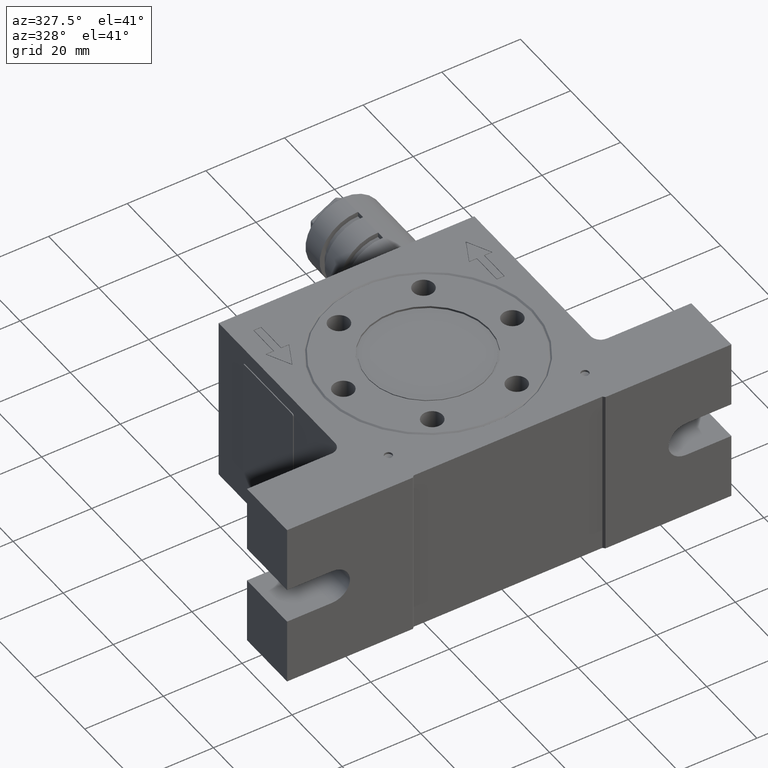
[diagram: clean part render]
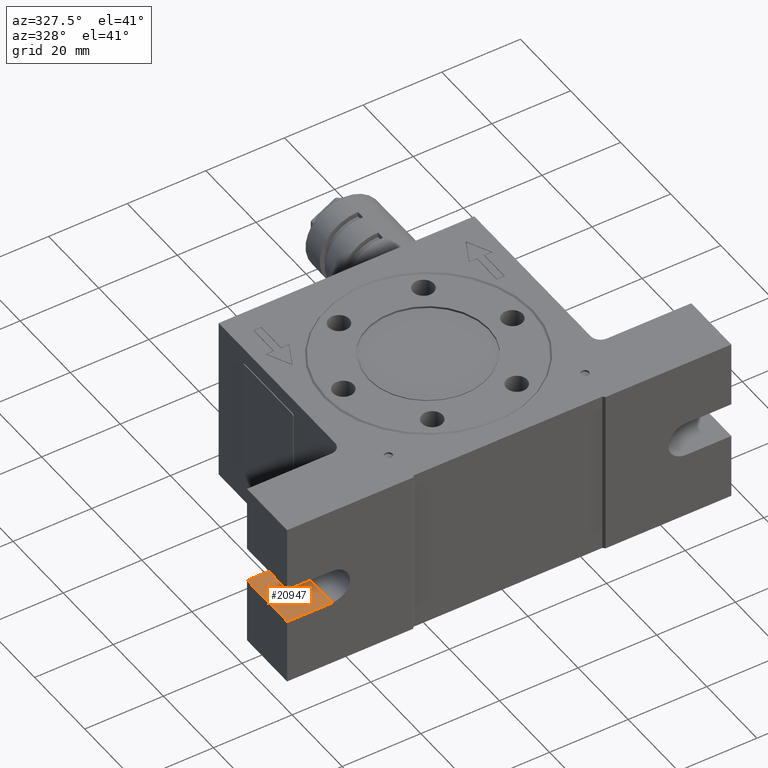
[diagram: same view with one face highlighted and labeled with its STEP entity id]
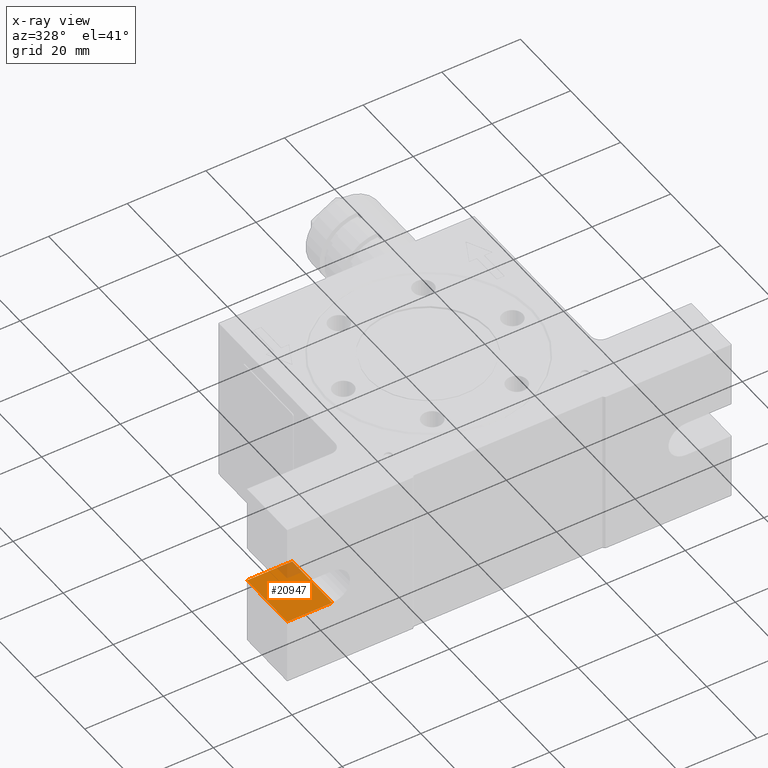
[diagram: x-ray of the same camera — body ghosted, the highlighted face saturated]
A machine part, auxiliary view. The second image highlights one B-rep face of the part: STEP entity #20947.
The next image is the same camera in x-ray: the body ghosted, the highlighted face saturated — about 9% of this face is hidden behind the body in this view.
In plain terms, the highlighted planar face has unit normal (-0, 0, -1).
Its self-contained STEP definition (entity closure, byte-faithful):
#465 = VECTOR ( 'NONE', #15392, 1000.000000000000000 ) ;
#981 = CARTESIAN_POINT ( 'NONE',  ( -45.00000000000000000, -16.50000000000000000, -4.500000000000000000 ) ) ;
#2049 = VERTEX_POINT ( 'NONE', #7178 ) ;
#2142 = LINE ( 'NONE', #18269, #14309 ) ;
#2880 = ORIENTED_EDGE ( 'NONE', *, *, #18148, .F. ) ;
#4796 = CARTESIAN_POINT ( 'NONE',  ( -45.00000000000000000, -32.50000000000000000, -4.500000000000000000 ) ) ;
#5578 = LINE ( 'NONE', #7452, #10248 ) ;
#5628 = VECTOR ( 'NONE', #14876, 1000.000000000000000 ) ;
#6692 = VERTEX_POINT ( 'NONE', #981 ) ;
#7076 = ORIENTED_EDGE ( 'NONE', *, *, #14333, .F. ) ;
#7178 = CARTESIAN_POINT ( 'NONE',  ( -56.50000000000000000, -16.50000000000000000, -4.500000000000000000 ) ) ;
#7341 = VERTEX_POINT ( 'NONE', #21377 ) ;
#7452 = CARTESIAN_POINT ( 'NONE',  ( -56.50000000000000000, -16.50000000000000000, -4.500000000000000000 ) ) ;
#7751 = EDGE_LOOP ( 'NONE', ( #9582, #2880, #7076, #13214 ) ) ;
#8139 = EDGE_CURVE ( 'NONE', #6692, #2049, #5578, .T. ) ;
#8458 = CARTESIAN_POINT ( 'NONE',  ( -45.00000000000000000, -32.50000000000000000, -4.500000000000000000 ) ) ;
#9582 = ORIENTED_EDGE ( 'NONE', *, *, #8139, .T. ) ;
#10248 = VECTOR ( 'NONE', #16155, 1000.000000000000000 ) ;
#10526 = CARTESIAN_POINT ( 'NONE',  ( -56.50000000000000000, -32.50000000000000000, -4.500000000000000000 ) ) ;
#10663 = FACE_OUTER_BOUND ( 'NONE', #7751, .T. ) ;
#11070 = LINE ( 'NONE', #10526, #465 ) ;
#11601 = CARTESIAN_POINT ( 'NONE',  ( -56.50000000000000000, -32.50000000000000000, -4.500000000000000000 ) ) ;
#13214 = ORIENTED_EDGE ( 'NONE', *, *, #14097, .T. ) ;
#14097 = EDGE_CURVE ( 'NONE', #16405, #6692, #17028, .T. ) ;
#14309 = VECTOR ( 'NONE', #14789, 1000.000000000000000 ) ;
#14333 = EDGE_CURVE ( 'NONE', #16405, #7341, #11070, .T. ) ;
#14787 = PLANE ( 'NONE',  #18323 ) ;
#14789 = DIRECTION ( 'NONE',  ( 0.0000000000000000000, 1.000000000000000000, 0.0000000000000000000 ) ) ;
#14876 = DIRECTION ( 'NONE',  ( 0.0000000000000000000, 1.000000000000000000, 0.0000000000000000000 ) ) ;
#15392 = DIRECTION ( 'NONE',  ( -1.000000000000000000, 0.0000000000000000000, 7.542275982507860100E-016 ) ) ;
#16155 = DIRECTION ( 'NONE',  ( -1.000000000000000000, 0.0000000000000000000, 7.542275982507860100E-016 ) ) ;
#16405 = VERTEX_POINT ( 'NONE', #8458 ) ;
#17028 = LINE ( 'NONE', #4796, #5628 ) ;
#18148 = EDGE_CURVE ( 'NONE', #7341, #2049, #2142, .T. ) ;
#18195 = DIRECTION ( 'NONE',  ( -7.542275982507860100E-016, 0.0000000000000000000, -1.000000000000000000 ) ) ;
#18269 = CARTESIAN_POINT ( 'NONE',  ( -56.50000000000000000, -32.50000000000000000, -4.500000000000000000 ) ) ;
#18323 = AXIS2_PLACEMENT_3D ( 'NONE', #11601, #18195, #19994 ) ;
#19994 = DIRECTION ( 'NONE',  ( -1.000000000000000000, 0.0000000000000000000, 7.542275982507860100E-016 ) ) ;
#20947 = ADVANCED_FACE ( 'NONE', ( #10663 ), #14787, .F. ) ;
#21377 = CARTESIAN_POINT ( 'NONE',  ( -56.50000000000000000, -32.50000000000000000, -4.500000000000000000 ) ) ;